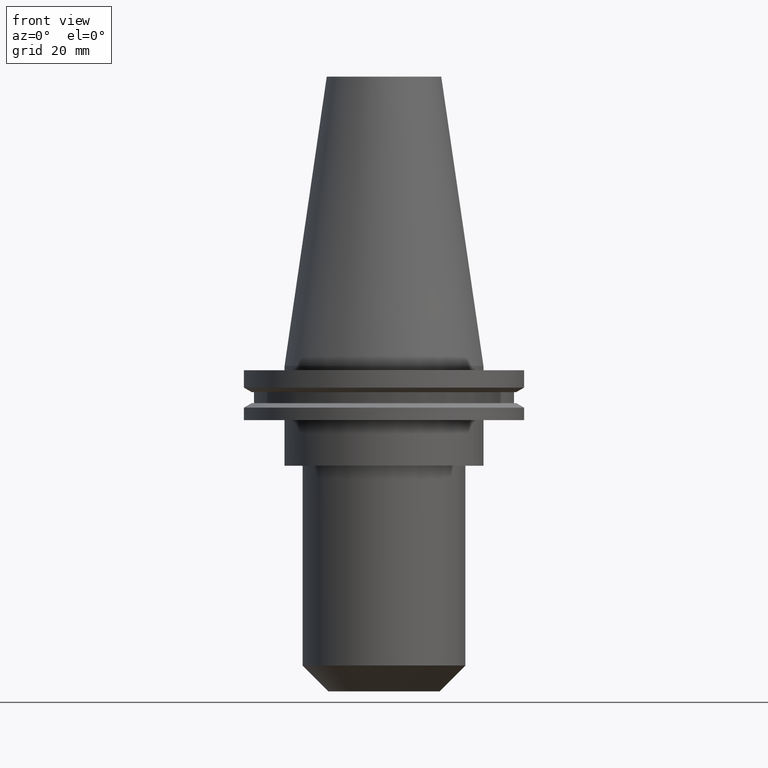
[diagram: clean part render]
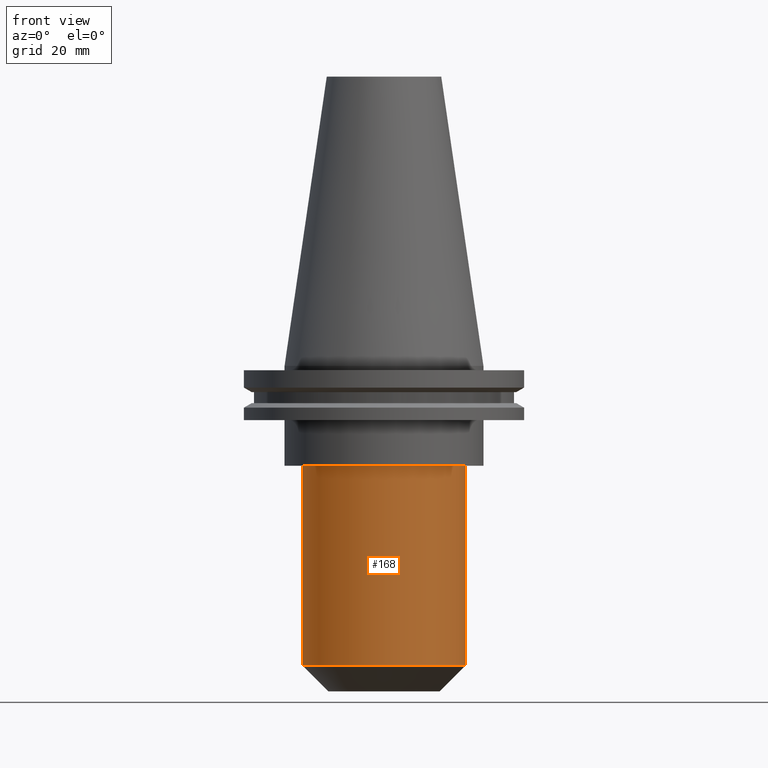
[diagram: same view with one face highlighted and labeled with its STEP entity id]
A machine part, front view. The second image highlights one B-rep face of the part: STEP entity #168.
In plain terms, the highlighted cylindrical surface (partial cylindrical patch) has radius 28.6 mm, axis along (-0, -0, 1).
Its self-contained STEP definition (entity closure, byte-faithful):
#39 = VERTEX_POINT ( 'NONE', #259 ) ;
#75 = CIRCLE ( 'NONE', #532, 28.59999999999999076 ) ;
#109 = VECTOR ( 'NONE', #232, 1000.000000000000000 ) ;
#151 = DIRECTION ( 'NONE',  ( -0.000000000000000000, -0.000000000000000000, 1.000000000000000000 ) ) ;
#161 = ORIENTED_EDGE ( 'NONE', *, *, #420, .T. ) ;
#164 = VERTEX_POINT ( 'NONE', #596 ) ;
#168 = ADVANCED_FACE ( 'NONE', ( #679 ), #343, .T. ) ;
#195 = EDGE_CURVE ( 'NONE', #488, #164, #364, .T. ) ;
#210 = DIRECTION ( 'NONE',  ( 1.000000000000000000, 0.000000000000000000, 0.000000000000000000 ) ) ;
#225 = DIRECTION ( 'NONE',  ( 1.000000000000000000, 0.000000000000000000, 0.000000000000000000 ) ) ;
#232 = DIRECTION ( 'NONE',  ( -0.000000000000000000, -0.000000000000000000, 1.000000000000000000 ) ) ;
#254 = EDGE_CURVE ( 'NONE', #39, #706, #746, .T. ) ;
#259 = CARTESIAN_POINT ( 'NONE',  ( -28.59999999999999787, 3.502489845561429418E-15, -105.2000000000000028 ) ) ;
#273 = EDGE_LOOP ( 'NONE', ( #301, #391, #648, #161 ) ) ;
#301 = ORIENTED_EDGE ( 'NONE', *, *, #254, .F. ) ;
#343 = CYLINDRICAL_SURFACE ( 'NONE', #708, 28.59999999999999076 ) ;
#346 = CARTESIAN_POINT ( 'NONE',  ( -28.59999999999999076, 3.502489845561428629E-15, -35.04999999999999716 ) ) ;
#364 = LINE ( 'NONE', #477, #569 ) ;
#391 = ORIENTED_EDGE ( 'NONE', *, *, #428, .T. ) ;
#420 = EDGE_CURVE ( 'NONE', #164, #706, #75, .T. ) ;
#428 = EDGE_CURVE ( 'NONE', #39, #488, #642, .T. ) ;
#440 = DIRECTION ( 'NONE',  ( 1.000000000000000000, 0.000000000000000000, 0.000000000000000000 ) ) ;
#477 = CARTESIAN_POINT ( 'NONE',  ( 28.59999999999999076, 0.000000000000000000, 0.000000000000000000 ) ) ;
#484 = AXIS2_PLACEMENT_3D ( 'NONE', #833, #758, #225 ) ;
#488 = VERTEX_POINT ( 'NONE', #841 ) ;
#509 = CARTESIAN_POINT ( 'NONE',  ( 0.000000000000000000, 0.000000000000000000, -35.04999999999999716 ) ) ;
#532 = AXIS2_PLACEMENT_3D ( 'NONE', #509, #580, #440 ) ;
#569 = VECTOR ( 'NONE', #686, 1000.000000000000000 ) ;
#580 = DIRECTION ( 'NONE',  ( 0.000000000000000000, 0.000000000000000000, -1.000000000000000000 ) ) ;
#596 = CARTESIAN_POINT ( 'NONE',  ( 28.59999999999999076, 0.000000000000000000, -35.04999999999999716 ) ) ;
#642 = CIRCLE ( 'NONE', #484, 28.59999999999999432 ) ;
#648 = ORIENTED_EDGE ( 'NONE', *, *, #195, .T. ) ;
#652 = CARTESIAN_POINT ( 'NONE',  ( -28.59999999999999076, 3.502489845561428629E-15, 0.000000000000000000 ) ) ;
#679 = FACE_OUTER_BOUND ( 'NONE', #273, .T. ) ;
#686 = DIRECTION ( 'NONE',  ( -0.000000000000000000, -0.000000000000000000, 1.000000000000000000 ) ) ;
#706 = VERTEX_POINT ( 'NONE', #346 ) ;
#708 = AXIS2_PLACEMENT_3D ( 'NONE', #738, #151, #210 ) ;
#738 = CARTESIAN_POINT ( 'NONE',  ( 0.000000000000000000, 0.000000000000000000, 0.000000000000000000 ) ) ;
#746 = LINE ( 'NONE', #652, #109 ) ;
#758 = DIRECTION ( 'NONE',  ( -0.000000000000000000, -0.000000000000000000, 1.000000000000000000 ) ) ;
#833 = CARTESIAN_POINT ( 'NONE',  ( 0.000000000000000000, 0.000000000000000000, -105.2000000000000028 ) ) ;
#841 = CARTESIAN_POINT ( 'NONE',  ( 28.59999999999999432, 0.000000000000000000, -105.2000000000000028 ) ) ;